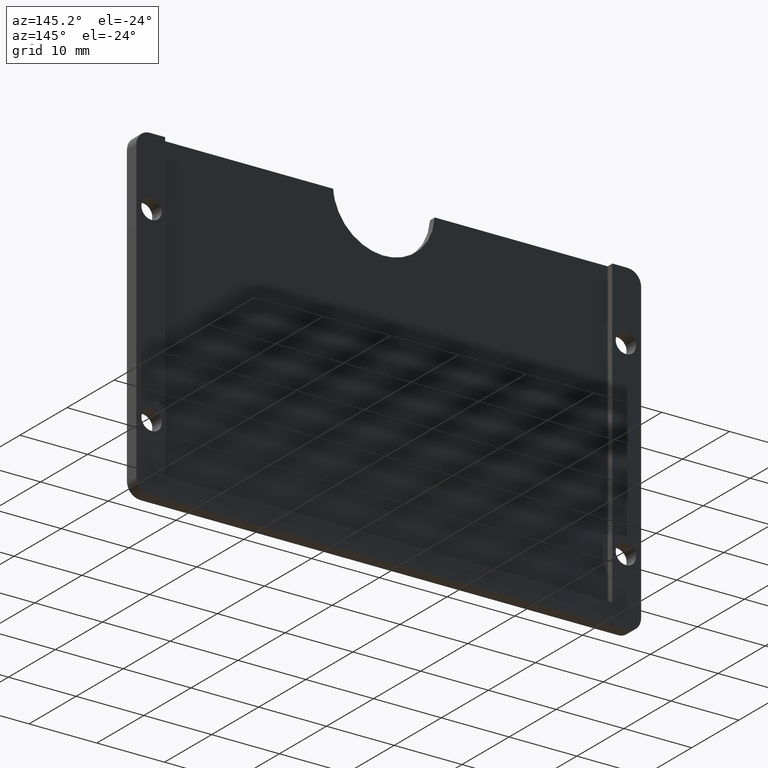
[diagram: clean part render]
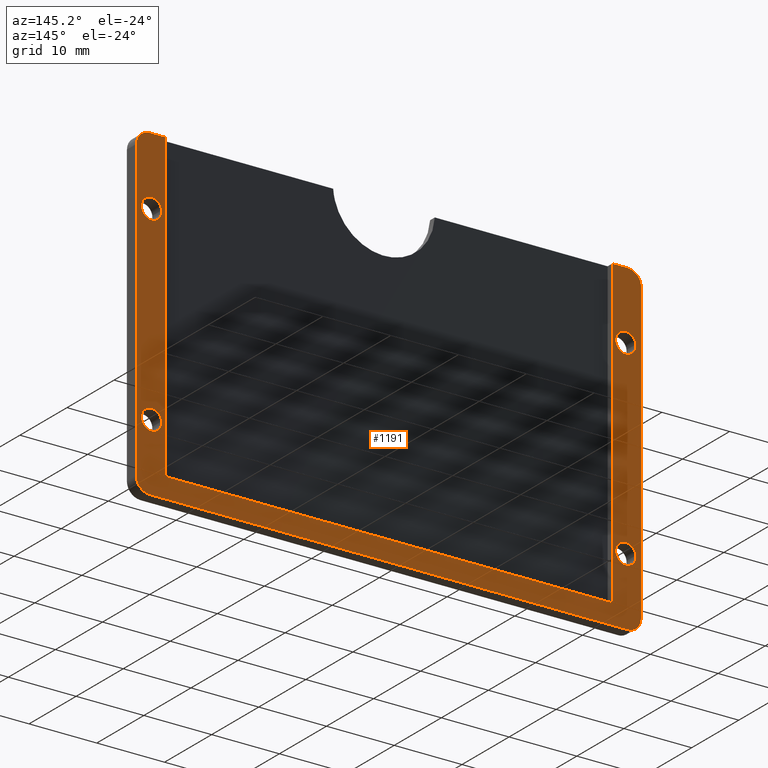
[diagram: same view with one face highlighted and labeled with its STEP entity id]
A machine part, auxiliary view. The second image highlights one B-rep face of the part: STEP entity #1191.
In plain terms, the highlighted face is a freeform B-spline surface patch.
Its self-contained STEP definition (entity closure, byte-faithful):
#100=CARTESIAN_POINT('',(36.497202197613127,2.0,9.908427190376081));
#101=VERTEX_POINT('',#100);
#107=CARTESIAN_POINT('',(35.0,2.0,8.500000000000000));
#108=VERTEX_POINT('',#107);
#109=CARTESIAN_POINT('',(35.0,2.0,8.500000000000000));
#110=CARTESIAN_POINT('',(36.411059099751171,2.000000000000000,8.500000000000000));
#111=CARTESIAN_POINT('',(36.497202197613134,2.000000000000000,9.908427190376081));
#119=(BOUNDED_CURVE()B_SPLINE_CURVE(2,(#109,#110,#111),.UNSPECIFIED.,.F.,.U.)B_SPLINE_CURVE_WITH_KNOTS((3,3),(0.500000000000000,0.739332962167835),.UNSPECIFIED.)CURVE()GEOMETRIC_REPRESENTATION_ITEM()RATIONAL_B_SPLINE_CURVE((1.0,0.719603993370018,0.976072041514321))REPRESENTATION_ITEM(''));
#120=EDGE_CURVE('',#108,#101,#119,.T.);
#122=CARTESIAN_POINT('',(33.510485710496411,2.0,10.177051352337800));
#123=VERTEX_POINT('',#122);
#124=CARTESIAN_POINT('',(33.510485710496411,2.0,10.177051352337804));
#125=CARTESIAN_POINT('',(33.500000000000000,2.000000000000000,10.088836179834260));
#126=CARTESIAN_POINT('',(33.500000000000000,2.0,10.0));
#127=CARTESIAN_POINT('',(33.500000000000007,2.000000000000000,8.500000000000002));
#128=CARTESIAN_POINT('',(35.0,2.0,8.500000000000000));
#136=(BOUNDED_CURVE()B_SPLINE_CURVE(2,(#124,#125,#126,#127,#128),.UNSPECIFIED.,.F.,.U.)B_SPLINE_CURVE_WITH_KNOTS((3,2,3),(0.229562473435616,0.250000000000000,0.500000000000000),.UNSPECIFIED.)CURVE()GEOMETRIC_REPRESENTATION_ITEM()RATIONAL_B_SPLINE_CURVE((0.956026754031027,0.976055948239888,1.0,0.707106781186548,1.0))REPRESENTATION_ITEM(''));
#137=EDGE_CURVE('',#123,#108,#136,.T.);
#181=CARTESIAN_POINT('',(35.0,2.0,11.500000000000000));
#182=VERTEX_POINT('',#181);
#183=CARTESIAN_POINT('',(35.0,2.0,11.500000000000000));
#184=CARTESIAN_POINT('',(33.667738211708262,2.0,11.500000000000000));
#185=CARTESIAN_POINT('',(33.510485710496404,2.000000000000000,10.177051352337804));
#193=(BOUNDED_CURVE()B_SPLINE_CURVE(2,(#183,#184,#185),.UNSPECIFIED.,.F.,.U.)B_SPLINE_CURVE_WITH_KNOTS((3,3),(0.0,0.229562473435616),.UNSPECIFIED.)CURVE()GEOMETRIC_REPRESENTATION_ITEM()RATIONAL_B_SPLINE_CURVE((1.0,0.731050832946660,0.956026754031026))REPRESENTATION_ITEM(''));
#194=EDGE_CURVE('',#182,#123,#193,.T.);
#196=CARTESIAN_POINT('',(36.497202197613134,2.000000000000000,9.908427190376081));
#197=CARTESIAN_POINT('',(36.500000000000000,2.000000000000000,9.954170854729581));
#198=CARTESIAN_POINT('',(36.500000000000007,2.0,10.0));
#199=CARTESIAN_POINT('',(36.500000000000007,2.000000000000000,11.500000000000000));
#200=CARTESIAN_POINT('',(35.0,2.0,11.500000000000000));
#208=(BOUNDED_CURVE()B_SPLINE_CURVE(2,(#196,#197,#198,#199,#200),.UNSPECIFIED.,.F.,.U.)B_SPLINE_CURVE_WITH_KNOTS((3,2,3),(0.739332962167834,0.750000000000000,1.0),.UNSPECIFIED.)CURVE()GEOMETRIC_REPRESENTATION_ITEM()RATIONAL_B_SPLINE_CURVE((0.976072041514318,0.987502787816528,1.0,0.707106781186548,1.0))REPRESENTATION_ITEM(''));
#209=EDGE_CURVE('',#101,#182,#208,.T.);
#286=CARTESIAN_POINT('',(36.497202197613127,2.0,37.908427190376081));
#287=VERTEX_POINT('',#286);
#293=CARTESIAN_POINT('',(35.0,2.0,36.500000000000000));
#294=VERTEX_POINT('',#293);
#295=CARTESIAN_POINT('',(35.0,2.0,36.500000000000000));
#296=CARTESIAN_POINT('',(36.411059099751142,2.000000000000000,36.500000000000000));
#297=CARTESIAN_POINT('',(36.497202197613134,2.000000000000000,37.908427190376081));
#305=(BOUNDED_CURVE()B_SPLINE_CURVE(2,(#295,#296,#297),.UNSPECIFIED.,.F.,.U.)B_SPLINE_CURVE_WITH_KNOTS((3,3),(0.500000000000000,0.739332962167833),.UNSPECIFIED.)CURVE()GEOMETRIC_REPRESENTATION_ITEM()RATIONAL_B_SPLINE_CURVE((1.0,0.719603993370021,0.976072041514316))REPRESENTATION_ITEM(''));
#306=EDGE_CURVE('',#294,#287,#305,.T.);
#308=CARTESIAN_POINT('',(33.510485710496418,2.0,38.177051352337799));
#309=VERTEX_POINT('',#308);
#310=CARTESIAN_POINT('',(33.510485710496411,2.000000000000000,38.177051352337799));
#311=CARTESIAN_POINT('',(33.499999999999993,2.0,38.088836179834260));
#312=CARTESIAN_POINT('',(33.500000000000000,2.0,38.0));
#313=CARTESIAN_POINT('',(33.500000000000007,2.000000000000000,36.500000000000007));
#314=CARTESIAN_POINT('',(35.0,2.0,36.500000000000000));
#322=(BOUNDED_CURVE()B_SPLINE_CURVE(2,(#310,#311,#312,#313,#314),.UNSPECIFIED.,.F.,.U.)B_SPLINE_CURVE_WITH_KNOTS((3,2,3),(0.229562473435616,0.250000000000000,0.500000000000000),.UNSPECIFIED.)CURVE()GEOMETRIC_REPRESENTATION_ITEM()RATIONAL_B_SPLINE_CURVE((0.956026754031026,0.976055948239888,1.0,0.707106781186548,1.0))REPRESENTATION_ITEM(''));
#323=EDGE_CURVE('',#309,#294,#322,.T.);
#367=CARTESIAN_POINT('',(35.0,2.0,39.500000000000000));
#368=VERTEX_POINT('',#367);
#369=CARTESIAN_POINT('',(35.0,2.0,39.500000000000000));
#370=CARTESIAN_POINT('',(33.667738211708254,2.000000000000000,39.500000000000007));
#371=CARTESIAN_POINT('',(33.510485710496411,2.000000000000000,38.177051352337799));
#379=(BOUNDED_CURVE()B_SPLINE_CURVE(2,(#369,#370,#371),.UNSPECIFIED.,.F.,.U.)B_SPLINE_CURVE_WITH_KNOTS((3,3),(0.0,0.229562473435616),.UNSPECIFIED.)CURVE()GEOMETRIC_REPRESENTATION_ITEM()RATIONAL_B_SPLINE_CURVE((1.0,0.731050832946660,0.956026754031026))REPRESENTATION_ITEM(''));
#380=EDGE_CURVE('',#368,#309,#379,.T.);
#382=CARTESIAN_POINT('',(36.497202197613142,2.0,37.908427190376081));
#383=CARTESIAN_POINT('',(36.500000000000007,2.000000000000000,37.954170854729576));
#384=CARTESIAN_POINT('',(36.500000000000007,2.0,38.0));
#385=CARTESIAN_POINT('',(36.500000000000007,2.000000000000000,39.500000000000000));
#386=CARTESIAN_POINT('',(35.0,2.0,39.500000000000000));
#394=(BOUNDED_CURVE()B_SPLINE_CURVE(2,(#382,#383,#384,#385,#386),.UNSPECIFIED.,.F.,.U.)B_SPLINE_CURVE_WITH_KNOTS((3,2,3),(0.739332962167834,0.750000000000000,1.0),.UNSPECIFIED.)CURVE()GEOMETRIC_REPRESENTATION_ITEM()RATIONAL_B_SPLINE_CURVE((0.976072041514318,0.987502787816528,1.0,0.707106781186548,1.0))REPRESENTATION_ITEM(''));
#395=EDGE_CURVE('',#287,#368,#394,.T.);
#472=CARTESIAN_POINT('',(-33.502797802386873,2.0,9.908427190376081));
#473=VERTEX_POINT('',#472);
#479=CARTESIAN_POINT('',(-35.0,2.0,8.500000000000000));
#480=VERTEX_POINT('',#479);
#481=CARTESIAN_POINT('',(-35.0,2.0,8.500000000000000));
#482=CARTESIAN_POINT('',(-33.588940900248836,2.000000000000000,8.500000000000000));
#483=CARTESIAN_POINT('',(-33.502797802386866,2.000000000000000,9.908427190376081));
#491=(BOUNDED_CURVE()B_SPLINE_CURVE(2,(#481,#482,#483),.UNSPECIFIED.,.F.,.U.)B_SPLINE_CURVE_WITH_KNOTS((3,3),(0.500000000000000,0.739332962167835),.UNSPECIFIED.)CURVE()GEOMETRIC_REPRESENTATION_ITEM()RATIONAL_B_SPLINE_CURVE((1.0,0.719603993370018,0.976072041514321))REPRESENTATION_ITEM(''));
#492=EDGE_CURVE('',#480,#473,#491,.T.);
#494=CARTESIAN_POINT('',(-36.489514289503582,2.0,10.177051352337809));
#495=VERTEX_POINT('',#494);
#496=CARTESIAN_POINT('',(-36.489514289503582,2.000000000000000,10.177051352337806));
#497=CARTESIAN_POINT('',(-36.500000000000007,2.000000000000000,10.088836179834262));
#498=CARTESIAN_POINT('',(-36.500000000000007,2.0,10.0));
#499=CARTESIAN_POINT('',(-36.500000000000007,2.000000000000000,8.500000000000002));
#500=CARTESIAN_POINT('',(-35.0,2.0,8.500000000000000));
#508=(BOUNDED_CURVE()B_SPLINE_CURVE(2,(#496,#497,#498,#499,#500),.UNSPECIFIED.,.F.,.U.)B_SPLINE_CURVE_WITH_KNOTS((3,2,3),(0.229562473435615,0.250000000000000,0.500000000000000),.UNSPECIFIED.)CURVE()GEOMETRIC_REPRESENTATION_ITEM()RATIONAL_B_SPLINE_CURVE((0.956026754031026,0.976055948239888,1.0,0.707106781186548,1.0))REPRESENTATION_ITEM(''));
#509=EDGE_CURVE('',#495,#480,#508,.T.);
#553=CARTESIAN_POINT('',(-35.0,2.0,11.500000000000000));
#554=VERTEX_POINT('',#553);
#555=CARTESIAN_POINT('',(-35.0,2.0,11.500000000000000));
#556=CARTESIAN_POINT('',(-36.332261788291753,2.000000000000000,11.499999999999998));
#557=CARTESIAN_POINT('',(-36.489514289503582,2.0,10.177051352337806));
#565=(BOUNDED_CURVE()B_SPLINE_CURVE(2,(#555,#556,#557),.UNSPECIFIED.,.F.,.U.)B_SPLINE_CURVE_WITH_KNOTS((3,3),(0.0,0.229562473435615),.UNSPECIFIED.)CURVE()GEOMETRIC_REPRESENTATION_ITEM()RATIONAL_B_SPLINE_CURVE((1.0,0.731050832946660,0.956026754031026))REPRESENTATION_ITEM(''));
#566=EDGE_CURVE('',#554,#495,#565,.T.);
#568=CARTESIAN_POINT('',(-33.502797802386866,2.0,9.908427190376081));
#569=CARTESIAN_POINT('',(-33.500000000000000,2.0,9.954170854729583));
#570=CARTESIAN_POINT('',(-33.500000000000000,2.0,10.0));
#571=CARTESIAN_POINT('',(-33.500000000000007,2.000000000000000,11.500000000000000));
#572=CARTESIAN_POINT('',(-35.0,2.0,11.500000000000000));
#580=(BOUNDED_CURVE()B_SPLINE_CURVE(2,(#568,#569,#570,#571,#572),.UNSPECIFIED.,.F.,.U.)B_SPLINE_CURVE_WITH_KNOTS((3,2,3),(0.739332962167834,0.750000000000000,1.0),.UNSPECIFIED.)CURVE()GEOMETRIC_REPRESENTATION_ITEM()RATIONAL_B_SPLINE_CURVE((0.976072041514318,0.987502787816528,1.0,0.707106781186548,1.0))REPRESENTATION_ITEM(''));
#581=EDGE_CURVE('',#473,#554,#580,.T.);
#658=CARTESIAN_POINT('',(-33.502797802386873,2.0,37.908427190376081));
#659=VERTEX_POINT('',#658);
#665=CARTESIAN_POINT('',(-35.0,2.0,36.500000000000000));
#666=VERTEX_POINT('',#665);
#667=CARTESIAN_POINT('',(-35.0,2.0,36.500000000000000));
#668=CARTESIAN_POINT('',(-33.588940900248836,2.000000000000000,36.500000000000014));
#669=CARTESIAN_POINT('',(-33.502797802386866,2.000000000000000,37.908427190376081));
#677=(BOUNDED_CURVE()B_SPLINE_CURVE(2,(#667,#668,#669),.UNSPECIFIED.,.F.,.U.)B_SPLINE_CURVE_WITH_KNOTS((3,3),(0.500000000000000,0.739332962167835),.UNSPECIFIED.)CURVE()GEOMETRIC_REPRESENTATION_ITEM()RATIONAL_B_SPLINE_CURVE((1.0,0.719603993370018,0.976072041514321))REPRESENTATION_ITEM(''));
#678=EDGE_CURVE('',#666,#659,#677,.T.);
#680=CARTESIAN_POINT('',(-36.489514289503589,2.0,38.177051352337799));
#681=VERTEX_POINT('',#680);
#682=CARTESIAN_POINT('',(-36.489514289503589,2.000000000000000,38.177051352337791));
#683=CARTESIAN_POINT('',(-36.500000000000007,2.000000000000000,38.088836179834253));
#684=CARTESIAN_POINT('',(-36.500000000000007,2.0,38.0));
#685=CARTESIAN_POINT('',(-36.500000000000007,2.000000000000000,36.500000000000007));
#686=CARTESIAN_POINT('',(-35.0,2.0,36.500000000000000));
#694=(BOUNDED_CURVE()B_SPLINE_CURVE(2,(#682,#683,#684,#685,#686),.UNSPECIFIED.,.F.,.U.)B_SPLINE_CURVE_WITH_KNOTS((3,2,3),(0.229562473435616,0.250000000000000,0.500000000000000),.UNSPECIFIED.)CURVE()GEOMETRIC_REPRESENTATION_ITEM()RATIONAL_B_SPLINE_CURVE((0.956026754031027,0.976055948239889,1.0,0.707106781186548,1.0))REPRESENTATION_ITEM(''));
#695=EDGE_CURVE('',#681,#666,#694,.T.);
#739=CARTESIAN_POINT('',(-35.0,2.0,39.500000000000000));
#740=VERTEX_POINT('',#739);
#741=CARTESIAN_POINT('',(-35.0,2.0,39.500000000000000));
#742=CARTESIAN_POINT('',(-36.332261788291760,2.0,39.499999999999986));
#743=CARTESIAN_POINT('',(-36.489514289503589,2.000000000000000,38.177051352337791));
#751=(BOUNDED_CURVE()B_SPLINE_CURVE(2,(#741,#742,#743),.UNSPECIFIED.,.F.,.U.)B_SPLINE_CURVE_WITH_KNOTS((3,3),(0.0,0.229562473435616),.UNSPECIFIED.)CURVE()GEOMETRIC_REPRESENTATION_ITEM()RATIONAL_B_SPLINE_CURVE((1.0,0.731050832946659,0.956026754031027))REPRESENTATION_ITEM(''));
#752=EDGE_CURVE('',#740,#681,#751,.T.);
#754=CARTESIAN_POINT('',(-33.502797802386866,2.000000000000000,37.908427190376088));
#755=CARTESIAN_POINT('',(-33.499999999999993,2.000000000000000,37.954170854729583));
#756=CARTESIAN_POINT('',(-33.500000000000000,2.0,38.0));
#757=CARTESIAN_POINT('',(-33.500000000000007,2.000000000000000,39.500000000000000));
#758=CARTESIAN_POINT('',(-35.0,2.0,39.500000000000000));
#766=(BOUNDED_CURVE()B_SPLINE_CURVE(2,(#754,#755,#756,#757,#758),.UNSPECIFIED.,.F.,.U.)B_SPLINE_CURVE_WITH_KNOTS((3,2,3),(0.739332962167834,0.750000000000000,1.0),.UNSPECIFIED.)CURVE()GEOMETRIC_REPRESENTATION_ITEM()RATIONAL_B_SPLINE_CURVE((0.976072041514318,0.987502787816528,1.0,0.707106781186548,1.0))REPRESENTATION_ITEM(''));
#767=EDGE_CURVE('',#659,#740,#766,.T.);
#853=CARTESIAN_POINT('',(33.0,2.0,3.0));
#854=VERTEX_POINT('',#853);
#855=CARTESIAN_POINT('',(-33.0,2.0,3.0));
#856=VERTEX_POINT('',#855);
#857=CARTESIAN_POINT('',(33.0,2.0,3.0));
#858=CARTESIAN_POINT('',(-33.0,2.0,3.0));
#859=QUASI_UNIFORM_CURVE('',1,(#857,#858),.UNSPECIFIED.,.F.,.U.);
#860=EDGE_CURVE('',#854,#856,#859,.T.);
#881=CARTESIAN_POINT('',(33.0,2.0,48.0));
#882=VERTEX_POINT('',#881);
#883=CARTESIAN_POINT('',(33.0,2.0,48.0));
#884=CARTESIAN_POINT('',(33.0,2.0,3.0));
#885=QUASI_UNIFORM_CURVE('',1,(#883,#884),.UNSPECIFIED.,.F.,.U.);
#886=EDGE_CURVE('',#882,#854,#885,.T.);
#903=CARTESIAN_POINT('',(-33.0,2.0,48.0));
#904=VERTEX_POINT('',#903);
#905=CARTESIAN_POINT('',(-33.0,2.0,3.0));
#906=CARTESIAN_POINT('',(-33.0,2.0,48.0));
#907=QUASI_UNIFORM_CURVE('',1,(#905,#906),.UNSPECIFIED.,.F.,.U.);
#908=EDGE_CURVE('',#856,#904,#907,.T.);
#1064=CARTESIAN_POINT('',(-40.971274855604548,2.0,50.397599906966697));
#1065=CARTESIAN_POINT('',(40.971276853850263,2.0,50.397599906966697));
#1066=CARTESIAN_POINT('',(-40.971274855604541,2.0,-2.397601194427014));
#1067=CARTESIAN_POINT('',(40.971276853850263,2.0,-2.397601194427014));
#1068=B_SPLINE_SURFACE_WITH_KNOTS('',1,1,((#1064,#1066),(#1065,#1067)),.UNSPECIFIED.,.F.,.F.,.U.,(2,2),(2,2),(0.0,81.942551709454804),(0.0,52.795201101393708),.UNSPECIFIED.);
#1069=CARTESIAN_POINT('',(-35.250000000000000,2.0,48.0));
#1070=VERTEX_POINT('',#1069);
#1071=CARTESIAN_POINT('',(-35.250000000000000,2.0,48.0));
#1072=CARTESIAN_POINT('',(-33.0,2.0,48.0));
#1073=QUASI_UNIFORM_CURVE('',1,(#1071,#1072),.UNSPECIFIED.,.F.,.U.);
#1074=EDGE_CURVE('',#1070,#904,#1073,.T.);
#1075=ORIENTED_EDGE('',*,*,#1074,.T.);
#1076=ORIENTED_EDGE('',*,*,#908,.F.);
#1077=ORIENTED_EDGE('',*,*,#860,.F.);
#1078=ORIENTED_EDGE('',*,*,#886,.F.);
#1079=CARTESIAN_POINT('',(35.250000000000000,2.0,48.0));
#1080=VERTEX_POINT('',#1079);
#1081=CARTESIAN_POINT('',(33.0,2.0,48.0));
#1082=CARTESIAN_POINT('',(35.250000000000000,2.0,48.0));
#1083=QUASI_UNIFORM_CURVE('',1,(#1081,#1082),.UNSPECIFIED.,.F.,.U.);
#1084=EDGE_CURVE('',#882,#1080,#1083,.T.);
#1085=ORIENTED_EDGE('',*,*,#1084,.T.);
#1086=CARTESIAN_POINT('',(37.250000000000000,2.0,46.0));
#1087=VERTEX_POINT('',#1086);
#1088=CARTESIAN_POINT('',(37.250000000000000,2.0,46.0));
#1089=CARTESIAN_POINT('',(37.250000000000000,2.000000000000000,48.000000000000014));
#1090=CARTESIAN_POINT('',(35.250000000000000,2.0,48.0));
#1098=(BOUNDED_CURVE()B_SPLINE_CURVE(2,(#1088,#1089,#1090),.UNSPECIFIED.,.F.,.U.)CURVE()GEOMETRIC_REPRESENTATION_ITEM()QUASI_UNIFORM_CURVE()RATIONAL_B_SPLINE_CURVE((1.0,0.707106781186548,1.0))REPRESENTATION_ITEM(''));
#1099=EDGE_CURVE('',#1087,#1080,#1098,.T.);
#1100=ORIENTED_EDGE('',*,*,#1099,.F.);
#1101=CARTESIAN_POINT('',(37.250000000000000,2.0,2.0));
#1102=VERTEX_POINT('',#1101);
#1103=CARTESIAN_POINT('',(37.250000000000000,2.0,46.0));
#1104=CARTESIAN_POINT('',(37.250000000000000,2.0,2.0));
#1105=QUASI_UNIFORM_CURVE('',1,(#1103,#1104),.UNSPECIFIED.,.F.,.U.);
#1106=EDGE_CURVE('',#1087,#1102,#1105,.T.);
#1107=ORIENTED_EDGE('',*,*,#1106,.T.);
#1108=CARTESIAN_POINT('',(35.250000000000000,2.0,0.0));
#1109=VERTEX_POINT('',#1108);
#1110=CARTESIAN_POINT('',(35.250000000000000,2.0,0.0));
#1111=CARTESIAN_POINT('',(37.250000000000000,2.000000000000000,0.0));
#1112=CARTESIAN_POINT('',(37.250000000000000,2.0,2.0));
#1120=(BOUNDED_CURVE()B_SPLINE_CURVE(2,(#1110,#1111,#1112),.UNSPECIFIED.,.F.,.U.)CURVE()GEOMETRIC_REPRESENTATION_ITEM()QUASI_UNIFORM_CURVE()RATIONAL_B_SPLINE_CURVE((1.0,0.707106781186548,1.0))REPRESENTATION_ITEM(''));
#1121=EDGE_CURVE('',#1109,#1102,#1120,.T.);
#1122=ORIENTED_EDGE('',*,*,#1121,.F.);
#1123=CARTESIAN_POINT('',(-35.250000000000000,2.0,0.0));
#1124=VERTEX_POINT('',#1123);
#1125=CARTESIAN_POINT('',(35.250000000000000,2.0,0.0));
#1126=CARTESIAN_POINT('',(-35.250000000000000,2.0,0.0));
#1127=QUASI_UNIFORM_CURVE('',1,(#1125,#1126),.UNSPECIFIED.,.F.,.U.);
#1128=EDGE_CURVE('',#1109,#1124,#1127,.T.);
#1129=ORIENTED_EDGE('',*,*,#1128,.T.);
#1130=CARTESIAN_POINT('',(-37.250000000000000,2.0,2.0));
#1131=VERTEX_POINT('',#1130);
#1132=CARTESIAN_POINT('',(-37.250000000000000,2.0,2.0));
#1133=CARTESIAN_POINT('',(-37.250000000000000,2.000000000000000,0.0));
#1134=CARTESIAN_POINT('',(-35.250000000000000,2.0,0.0));
#1142=(BOUNDED_CURVE()B_SPLINE_CURVE(2,(#1132,#1133,#1134),.UNSPECIFIED.,.F.,.U.)CURVE()GEOMETRIC_REPRESENTATION_ITEM()QUASI_UNIFORM_CURVE()RATIONAL_B_SPLINE_CURVE((1.0,0.707106781186548,1.0))REPRESENTATION_ITEM(''));
#1143=EDGE_CURVE('',#1131,#1124,#1142,.T.);
#1144=ORIENTED_EDGE('',*,*,#1143,.F.);
#1145=CARTESIAN_POINT('',(-37.250000000000000,2.0,46.0));
#1146=VERTEX_POINT('',#1145);
#1147=CARTESIAN_POINT('',(-37.250000000000000,2.0,2.0));
#1148=CARTESIAN_POINT('',(-37.250000000000000,2.0,46.0));
#1149=QUASI_UNIFORM_CURVE('',1,(#1147,#1148),.UNSPECIFIED.,.F.,.U.);
#1150=EDGE_CURVE('',#1131,#1146,#1149,.T.);
#1151=ORIENTED_EDGE('',*,*,#1150,.T.);
#1152=CARTESIAN_POINT('',(-35.250000000000000,2.0,48.0));
#1153=CARTESIAN_POINT('',(-37.250000000000000,2.000000000000000,48.000000000000014));
#1154=CARTESIAN_POINT('',(-37.250000000000000,2.0,46.0));
#1162=(BOUNDED_CURVE()B_SPLINE_CURVE(2,(#1152,#1153,#1154),.UNSPECIFIED.,.F.,.U.)CURVE()GEOMETRIC_REPRESENTATION_ITEM()QUASI_UNIFORM_CURVE()RATIONAL_B_SPLINE_CURVE((1.0,0.707106781186548,1.0))REPRESENTATION_ITEM(''));
#1163=EDGE_CURVE('',#1070,#1146,#1162,.T.);
#1164=ORIENTED_EDGE('',*,*,#1163,.F.);
#1165=EDGE_LOOP('',(#1075,#1076,#1077,#1078,#1085,#1100,#1107,#1122,#1129,#1144,#1151,#1164));
#1166=FACE_OUTER_BOUND('',#1165,.T.);
#1167=ORIENTED_EDGE('',*,*,#678,.T.);
#1168=ORIENTED_EDGE('',*,*,#767,.T.);
#1169=ORIENTED_EDGE('',*,*,#752,.T.);
#1170=ORIENTED_EDGE('',*,*,#695,.T.);
#1171=EDGE_LOOP('',(#1167,#1168,#1169,#1170));
#1172=FACE_BOUND('',#1171,.T.);
#1173=ORIENTED_EDGE('',*,*,#492,.T.);
#1174=ORIENTED_EDGE('',*,*,#581,.T.);
#1175=ORIENTED_EDGE('',*,*,#566,.T.);
#1176=ORIENTED_EDGE('',*,*,#509,.T.);
#1177=EDGE_LOOP('',(#1173,#1174,#1175,#1176));
#1178=FACE_BOUND('',#1177,.T.);
#1179=ORIENTED_EDGE('',*,*,#306,.T.);
#1180=ORIENTED_EDGE('',*,*,#395,.T.);
#1181=ORIENTED_EDGE('',*,*,#380,.T.);
#1182=ORIENTED_EDGE('',*,*,#323,.T.);
#1183=EDGE_LOOP('',(#1179,#1180,#1181,#1182));
#1184=FACE_BOUND('',#1183,.T.);
#1185=ORIENTED_EDGE('',*,*,#120,.T.);
#1186=ORIENTED_EDGE('',*,*,#209,.T.);
#1187=ORIENTED_EDGE('',*,*,#194,.T.);
#1188=ORIENTED_EDGE('',*,*,#137,.T.);
#1189=EDGE_LOOP('',(#1185,#1186,#1187,#1188));
#1190=FACE_BOUND('',#1189,.T.);
#1191=ADVANCED_FACE('',(#1166,#1172,#1178,#1184,#1190),#1068,.T.);